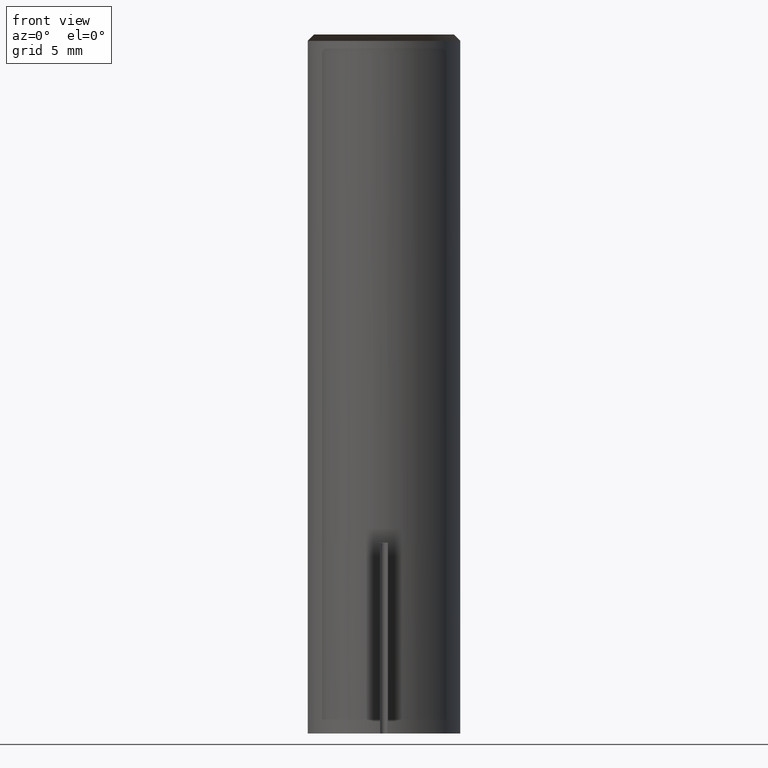
[diagram: clean part render]
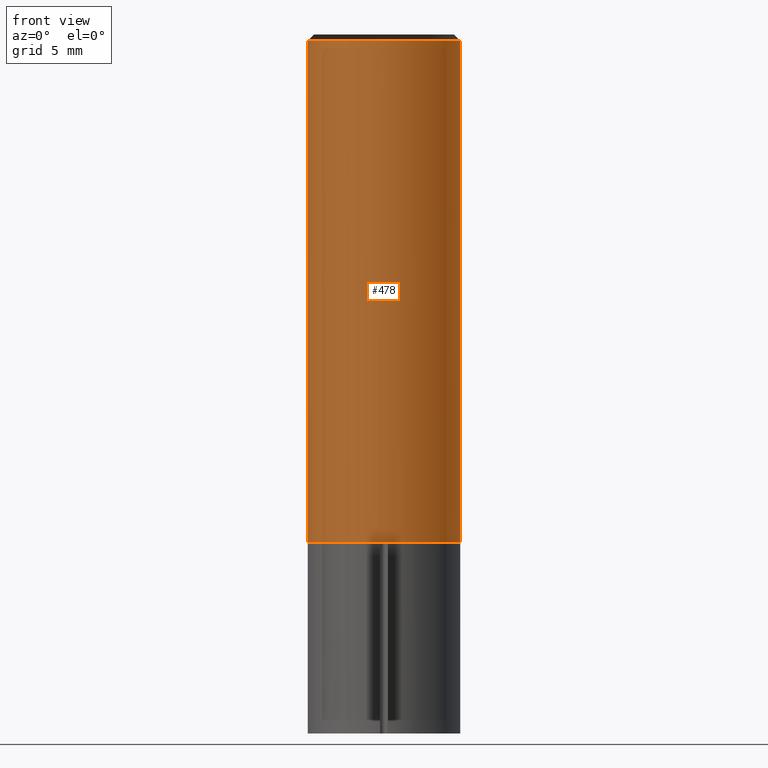
[diagram: same view with one face highlighted and labeled with its STEP entity id]
A machine part, front view. The second image highlights one B-rep face of the part: STEP entity #478.
In plain terms, the highlighted face is a freeform B-spline surface patch.
Its self-contained STEP definition (entity closure, byte-faithful):
#81=CARTESIAN_POINT('',(6.0,0.0,0.0));
#85=CARTESIAN_POINT('',(-6.0,0.0,0.0));
#97=CARTESIAN_POINT('',(-6.0,-6.0,0.0));
#98=CARTESIAN_POINT('',(0.0,-6.0,0.0));
#99=CARTESIAN_POINT('',(6.0,-6.0,0.0));
#104=CARTESIAN_POINT('',(6.0,0.0,39.5));
#108=CARTESIAN_POINT('',(-6.0,0.0,39.5));
#115=CARTESIAN_POINT('',(-6.0,-6.0,39.5));
#116=CARTESIAN_POINT('',(0.0,-6.0,39.5));
#117=CARTESIAN_POINT('',(6.0,-6.0,39.5));
#459=(
BOUNDED_SURFACE()
B_SPLINE_SURFACE(1,2,(
(#85,#97,#98,#99,#81),
(#108,#115,#116,#117,#104)
), .UNSPECIFIED.,.F.,.F.,.F.)
B_SPLINE_SURFACE_WITH_KNOTS((2,2),(3,2,3),(
0.0,1.0),(
0.0,0.5,1.0), .UNSPECIFIED.)
GEOMETRIC_REPRESENTATION_ITEM()
RATIONAL_B_SPLINE_SURFACE(((1.0,0.707106781187,1.0,0.707106781187,1.0),
(1.0,0.707106781187,1.0,0.707106781187,1.0)
))
REPRESENTATION_ITEM('')
SURFACE()
);
#460=(
BOUNDED_CURVE()
B_SPLINE_CURVE(2,(#81,#99,#98,#97,#85),.UNSPECIFIED.,.F.,.F.)
B_SPLINE_CURVE_WITH_KNOTS((3,2,3),
(0.0,0.5,1.0),.UNSPECIFIED.)
CURVE()
GEOMETRIC_REPRESENTATION_ITEM()
RATIONAL_B_SPLINE_CURVE((1.0,0.707106781187,1.0,0.707106781187,1.0))
REPRESENTATION_ITEM('')
);
#461=(
BOUNDED_CURVE()
B_SPLINE_CURVE(1,(#85,#108),.UNSPECIFIED.,.F.,.F.)
B_SPLINE_CURVE_WITH_KNOTS((2,2),
(0.0,1.0),.UNSPECIFIED.)
CURVE()
GEOMETRIC_REPRESENTATION_ITEM()
RATIONAL_B_SPLINE_CURVE((1.0,1.0))
REPRESENTATION_ITEM('')
);
#462=(
BOUNDED_CURVE()
B_SPLINE_CURVE(2,(#108,#115,#116,#117,#104),.UNSPECIFIED.,.F.,.F.)
B_SPLINE_CURVE_WITH_KNOTS((3,2,3),
(0.0,0.5,1.0),.UNSPECIFIED.)
CURVE()
GEOMETRIC_REPRESENTATION_ITEM()
RATIONAL_B_SPLINE_CURVE((1.0,0.707106781187,1.0,0.707106781187,1.0))
REPRESENTATION_ITEM('')
);
#463=(
BOUNDED_CURVE()
B_SPLINE_CURVE(1,(#104,#81),.UNSPECIFIED.,.F.,.F.)
B_SPLINE_CURVE_WITH_KNOTS((2,2),
(0.0,1.0),.UNSPECIFIED.)
CURVE()
GEOMETRIC_REPRESENTATION_ITEM()
RATIONAL_B_SPLINE_CURVE((1.0,1.0))
REPRESENTATION_ITEM('')
);
#464=VERTEX_POINT('',#81);
#465=VERTEX_POINT('',#85);
#466=VERTEX_POINT('',#104);
#467=VERTEX_POINT('',#108);
#468=EDGE_CURVE('',#464,#465,#460,.T.);
#469=EDGE_CURVE('',#465,#467,#461,.T.);
#470=EDGE_CURVE('',#467,#466,#462,.T.);
#471=EDGE_CURVE('',#466,#464,#463,.T.);
#472=ORIENTED_EDGE('',*,*,#468,.T.);
#473=ORIENTED_EDGE('',*,*,#469,.T.);
#474=ORIENTED_EDGE('',*,*,#470,.T.);
#475=ORIENTED_EDGE('',*,*,#471,.T.);
#476=EDGE_LOOP('',(#472,#473,#474,#475));
#477=FACE_OUTER_BOUND('',#476,.T.);
#478=ADVANCED_FACE('',(#477),#459,.T.);